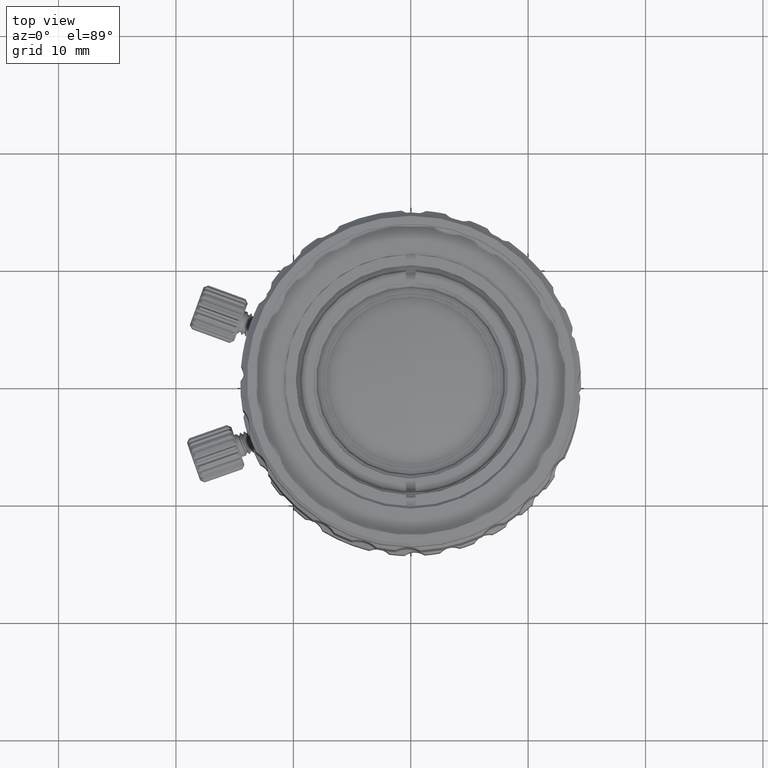
[diagram: clean part render]
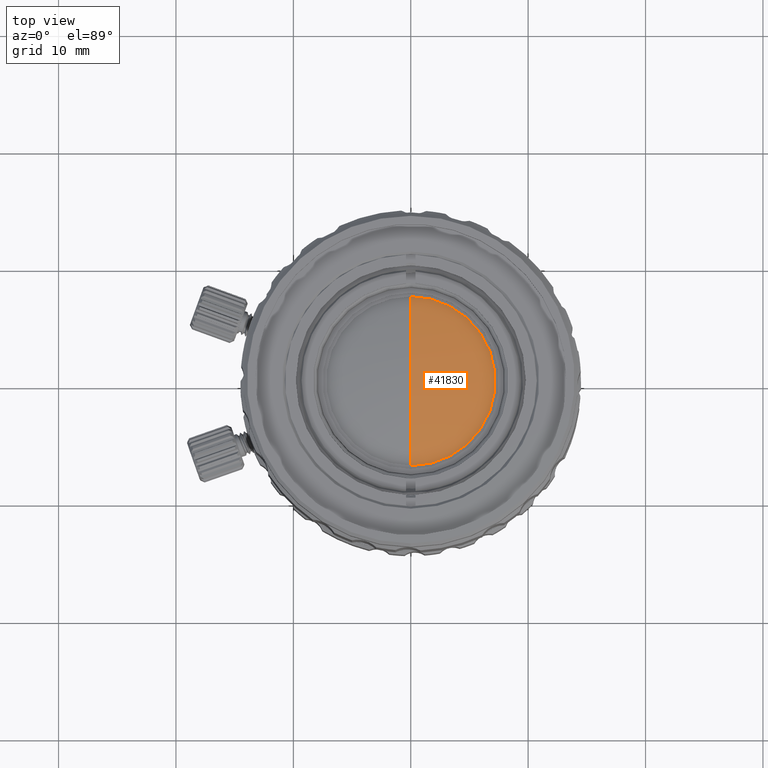
[diagram: same view with one face highlighted and labeled with its STEP entity id]
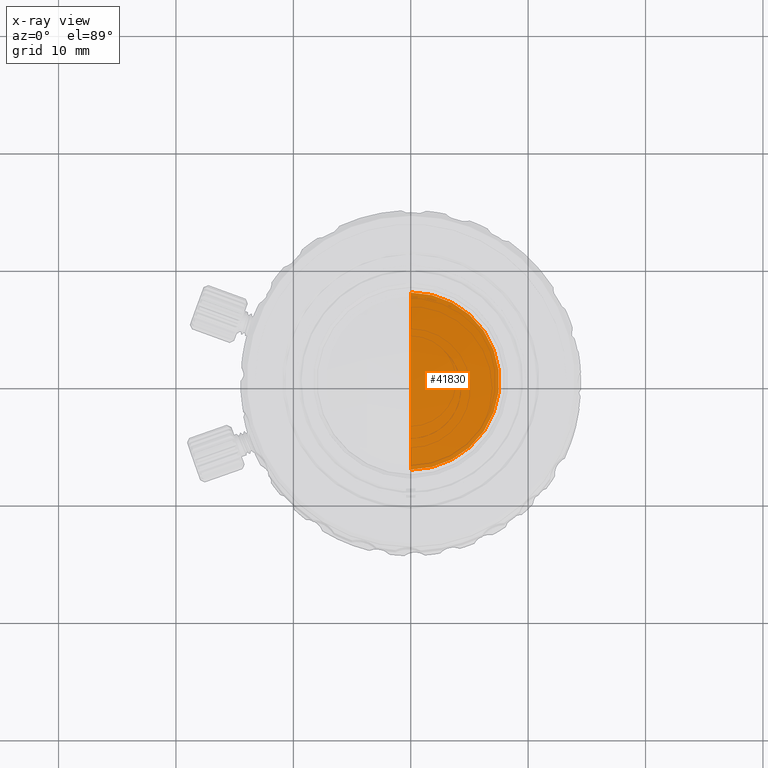
[diagram: x-ray of the same camera — body ghosted, the highlighted face saturated]
A machine part, top view. The second image highlights one B-rep face of the part: STEP entity #41830.
The next image is the same camera in x-ray: the body ghosted, the highlighted face saturated — about 0% of this face is hidden behind the body in this view.
In plain terms, the highlighted spherical surface has radius 34.4518 mm.
Its self-contained STEP definition (entity closure, byte-faithful):
#2931 = AXIS2_PLACEMENT_3D ( 'NONE', #42326, #49764, #32831 ) ;
#4118 = DIRECTION ( 'NONE',  ( -5.730527163904999265E-11, -1.000000000000000000, 0.000000000000000000 ) ) ;
#4742 = CARTESIAN_POINT ( 'NONE',  ( 0.000000000000000000, -1.273953662554371168E-30, 23.93280026128999793 ) ) ;
#5348 = DIRECTION ( 'NONE',  ( 1.000000000000000000, -0.000000000000000000, 0.000000000000000000 ) ) ;
#11207 = EDGE_CURVE ( 'NONE', #49135, #27440, #34054, .T. ) ;
#13226 = EDGE_CURVE ( 'NONE', #31048, #49135, #40419, .T. ) ;
#15854 = ORIENTED_EDGE ( 'NONE', *, *, #42558, .F. ) ;
#23961 = CARTESIAN_POINT ( 'NONE',  ( 0.000000000000000000, 0.000000000000000000, -10.51899973871000071 ) ) ;
#25890 = CARTESIAN_POINT ( 'NONE',  ( 0.000000000000000000, 0.000000000000000000, 23.09673624314600104 ) ) ;
#26704 = AXIS2_PLACEMENT_3D ( 'NONE', #25890, #30180, #4118 ) ;
#27440 = VERTEX_POINT ( 'NONE', #49027 ) ;
#27605 = CIRCLE ( 'NONE', #2931, 34.45179999999999865 ) ;
#28534 = FACE_OUTER_BOUND ( 'NONE', #37299, .T. ) ;
#30180 = DIRECTION ( 'NONE',  ( 0.000000000000000000, 0.000000000000000000, 1.000000000000000000 ) ) ;
#31048 = VERTEX_POINT ( 'NONE', #4742 ) ;
#32831 = DIRECTION ( 'NONE',  ( 0.000000000000000000, 0.000000000000000000, 1.000000000000000000 ) ) ;
#34054 = CIRCLE ( 'NONE', #26704, 7.543793318890999799 ) ;
#37178 = CARTESIAN_POINT ( 'NONE',  ( 0.000000000000000000, 0.000000000000000000, -10.51899973871000071 ) ) ;
#37299 = EDGE_LOOP ( 'NONE', ( #15854, #53219, #43284 ) ) ;
#40419 = CIRCLE ( 'NONE', #41457, 34.45179999999999865 ) ;
#41457 = AXIS2_PLACEMENT_3D ( 'NONE', #37178, #49499, #53806 ) ;
#41830 = ADVANCED_FACE ( 'NONE', ( #28534 ), #45731, .T. ) ;
#42326 = CARTESIAN_POINT ( 'NONE',  ( 0.000000000000000000, 0.000000000000000000, -10.51899973871000071 ) ) ;
#42558 = EDGE_CURVE ( 'NONE', #31048, #27440, #27605, .T. ) ;
#43284 = ORIENTED_EDGE ( 'NONE', *, *, #11207, .T. ) ;
#45173 = DIRECTION ( 'NONE',  ( 0.000000000000000000, 1.000000000000000000, 0.000000000000000000 ) ) ;
#45731 = SPHERICAL_SURFACE ( 'NONE', #53240, 34.45179999999999865 ) ;
#49027 = CARTESIAN_POINT ( 'NONE',  ( 0.000000000000000000, 7.543793318891237831, 23.09673624314600104 ) ) ;
#49135 = VERTEX_POINT ( 'NONE', #54788 ) ;
#49499 = DIRECTION ( 'NONE',  ( 1.000000000000000000, 1.224646799147353207E-16, 7.498798913309293513E-33 ) ) ;
#49764 = DIRECTION ( 'NONE',  ( -1.000000000000000000, 0.000000000000000000, 0.000000000000000000 ) ) ;
#53219 = ORIENTED_EDGE ( 'NONE', *, *, #13226, .T. ) ;
#53240 = AXIS2_PLACEMENT_3D ( 'NONE', #23961, #5348, #45173 ) ;
#53806 = DIRECTION ( 'NONE',  ( -1.224646799147353207E-16, 1.000000000000000000, 0.000000000000000000 ) ) ;
#54788 = CARTESIAN_POINT ( 'NONE',  ( 9.238482341344229005E-16, -7.543793318891237831, 23.09673624314600104 ) ) ;